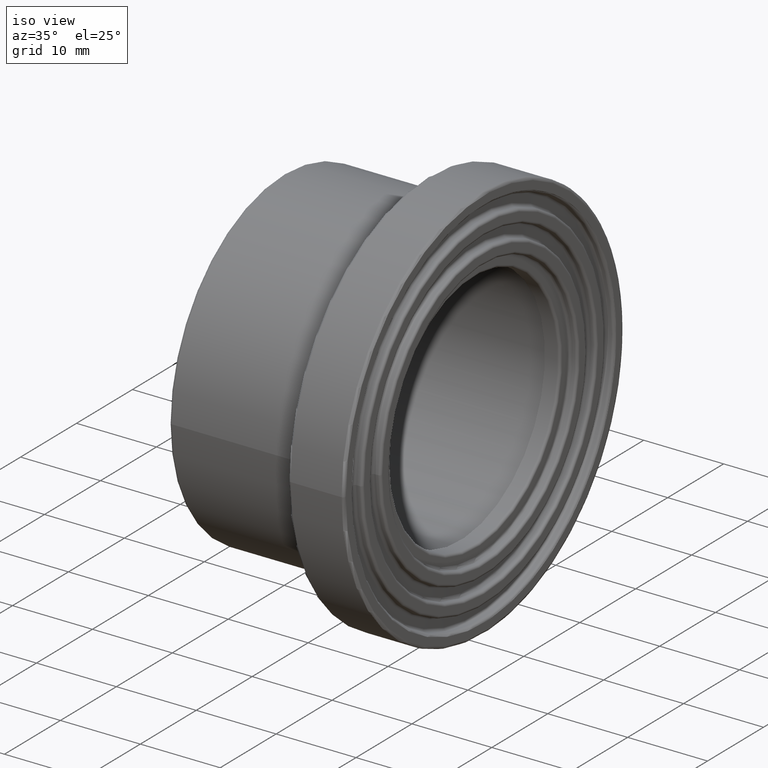
[diagram: clean part render]
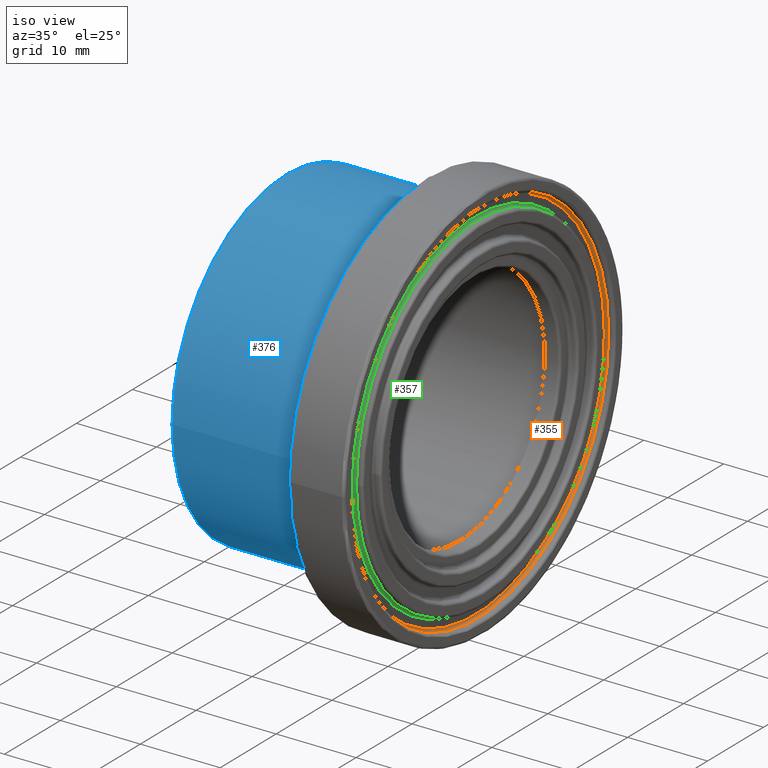
[diagram: same view with three faces highlighted in distinct colors, each labeled with its STEP entity id]
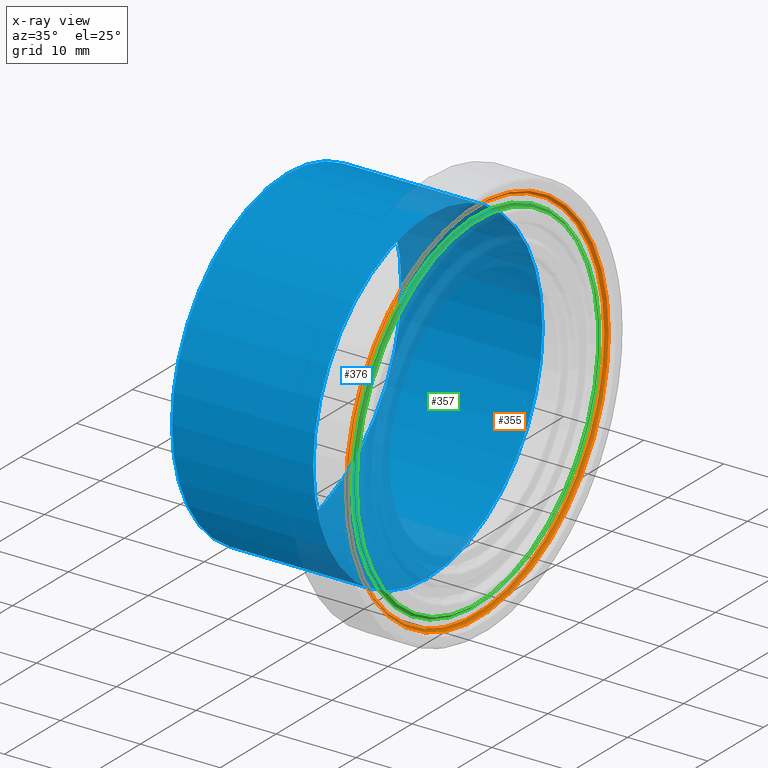
[diagram: x-ray of the same camera — body ghosted, the three highlighted faces saturated]
A machine part, iso view with three faces highlighted in distinct colors.
The next image is the same camera in x-ray (body ghosted, the three faces saturated) — at least one of them is partly hidden behind the body in this view.
Their STEP definitions:

[orange] entity #355 — the highlighted toroidal blend (fillet) surface has major radius 23.0467 mm and minor (blend) radius 0.32 mm.
#43=FACE_BOUND('',#120,.T.);
#76=FACE_OUTER_BOUND('',#119,.T.);
#119=EDGE_LOOP('',(#284));
#120=EDGE_LOOP('',(#285));
#175=CIRCLE('',#399,23.3666666666667);
#177=CIRCLE('',#403,23.0466666666667);
#208=VERTEX_POINT('',#610);
#210=VERTEX_POINT('',#616);
#241=EDGE_CURVE('',#208,#208,#175,.T.);
#243=EDGE_CURVE('',#210,#210,#177,.T.);
#284=ORIENTED_EDGE('',*,*,#243,.T.);
#285=ORIENTED_EDGE('',*,*,#241,.T.);
#334=TOROIDAL_SURFACE('',#402,23.0466666666667,0.32);
#355=ADVANCED_FACE('',(#76,#43),#334,.F.);
#399=AXIS2_PLACEMENT_3D('',#611,#486,#487);
#402=AXIS2_PLACEMENT_3D('',#615,#492,#493);
#403=AXIS2_PLACEMENT_3D('',#617,#494,#495);
#486=DIRECTION('center_axis',(1.,0.,0.));
#487=DIRECTION('ref_axis',(0.,1.,6.12323399573676E-17));
#492=DIRECTION('center_axis',(-1.,0.,0.));
#493=DIRECTION('ref_axis',(0.,0.,1.));
#494=DIRECTION('center_axis',(-1.,0.,0.));
#495=DIRECTION('ref_axis',(0.,1.,6.12323399573677E-17));
#610=CARTESIAN_POINT('',(24.27,-23.3666666666667,-4.29238703101147E-15));
#611=CARTESIAN_POINT('Origin',(24.27,0.,0.));
#615=CARTESIAN_POINT('Origin',(24.27,0.,0.));
#616=CARTESIAN_POINT('',(23.95,-23.0466666666667,1.41120132821747E-15));
#617=CARTESIAN_POINT('Origin',(23.95,0.,0.));

[blue] entity #376 — the highlighted cylindrical surface (bore or boss wall) has radius 20.5 mm, axis along (-1, 0, 0).
#23=CYLINDRICAL_SURFACE('',#444,20.5);
#64=FACE_BOUND('',#162,.T.);
#97=FACE_OUTER_BOUND('',#161,.T.);
#161=EDGE_LOOP('',(#326));
#162=EDGE_LOOP('',(#327));
#196=CIRCLE('',#441,20.5);
#197=CIRCLE('',#443,20.5);
#229=VERTEX_POINT('',#673);
#230=VERTEX_POINT('',#676);
#262=EDGE_CURVE('',#229,#229,#196,.T.);
#263=EDGE_CURVE('',#230,#230,#197,.T.);
#326=ORIENTED_EDGE('',*,*,#262,.T.);
#327=ORIENTED_EDGE('',*,*,#263,.F.);
#376=ADVANCED_FACE('',(#97,#64),#23,.T.);
#441=AXIS2_PLACEMENT_3D('',#674,#570,#571);
#443=AXIS2_PLACEMENT_3D('',#677,#574,#575);
#444=AXIS2_PLACEMENT_3D('',#678,#576,#577);
#570=DIRECTION('center_axis',(-1.,0.,0.));
#571=DIRECTION('ref_axis',(0.,0.,1.));
#574=DIRECTION('center_axis',(-1.,0.,0.));
#575=DIRECTION('ref_axis',(0.,1.,6.12323399573677E-17));
#576=DIRECTION('center_axis',(-1.,0.,0.));
#577=DIRECTION('ref_axis',(0.,-1.,0.));
#673=CARTESIAN_POINT('',(18.,-20.5,0.));
#674=CARTESIAN_POINT('Origin',(18.,0.,0.));
#676=CARTESIAN_POINT('',(0.32,-20.5,1.25526296912604E-15));
#677=CARTESIAN_POINT('Origin',(0.32,0.,0.));
#678=CARTESIAN_POINT('Origin',(9.,0.,0.));

[green] entity #357 — the highlighted toroidal blend (fillet) surface has major radius 22.0533 mm and minor (blend) radius 0.32 mm.
#45=FACE_BOUND('',#124,.T.);
#78=FACE_OUTER_BOUND('',#123,.T.);
#123=EDGE_LOOP('',(#288));
#124=EDGE_LOOP('',(#289));
#178=CIRCLE('',#405,22.0533333333333);
#179=CIRCLE('',#407,21.7333333333333);
#211=VERTEX_POINT('',#619);
#212=VERTEX_POINT('',#622);
#244=EDGE_CURVE('',#211,#211,#178,.T.);
#245=EDGE_CURVE('',#212,#212,#179,.T.);
#288=ORIENTED_EDGE('',*,*,#245,.T.);
#289=ORIENTED_EDGE('',*,*,#244,.T.);
#335=TOROIDAL_SURFACE('',#406,22.0533333333333,0.32);
#357=ADVANCED_FACE('',(#78,#45),#335,.F.);
#405=AXIS2_PLACEMENT_3D('',#620,#498,#499);
#406=AXIS2_PLACEMENT_3D('',#621,#500,#501);
#407=AXIS2_PLACEMENT_3D('',#623,#502,#503);
#498=DIRECTION('center_axis',(1.,0.,0.));
#499=DIRECTION('ref_axis',(0.,1.,6.12323399573677E-17));
#500=DIRECTION('center_axis',(-1.,0.,0.));
#501=DIRECTION('ref_axis',(0.,0.,1.));
#502=DIRECTION('center_axis',(-1.,0.,0.));
#503=DIRECTION('ref_axis',(0.,1.,6.12323399573677E-17));
#619=CARTESIAN_POINT('',(23.95,-22.0533333333333,-4.05113161157944E-15));
#620=CARTESIAN_POINT('Origin',(23.95,0.,0.));
#621=CARTESIAN_POINT('Origin',(24.27,0.,0.));
#622=CARTESIAN_POINT('',(24.27,-21.7333333333333,1.33078285507346E-15));
#623=CARTESIAN_POINT('Origin',(24.27,0.,0.));